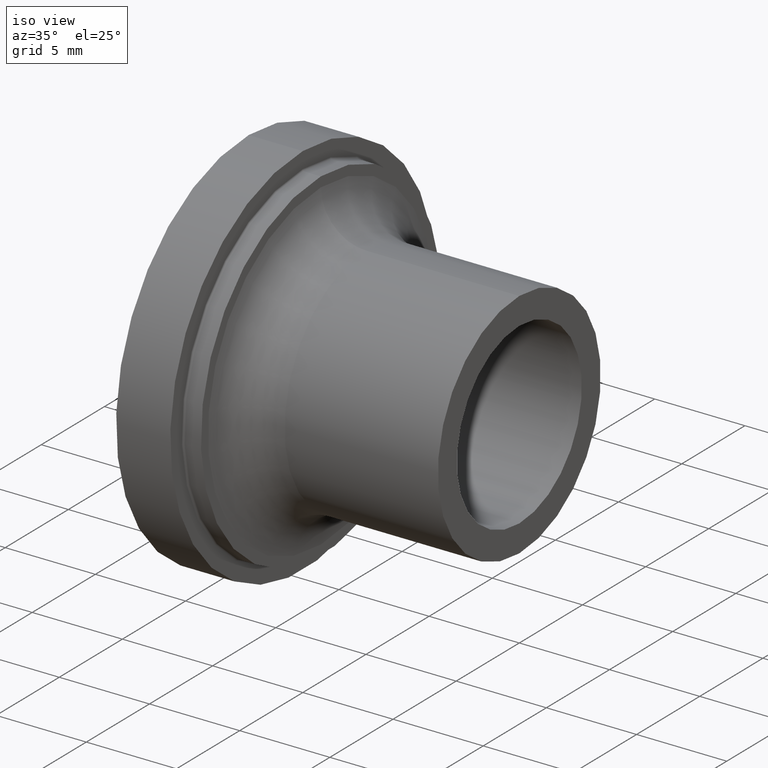
[diagram: clean part render]
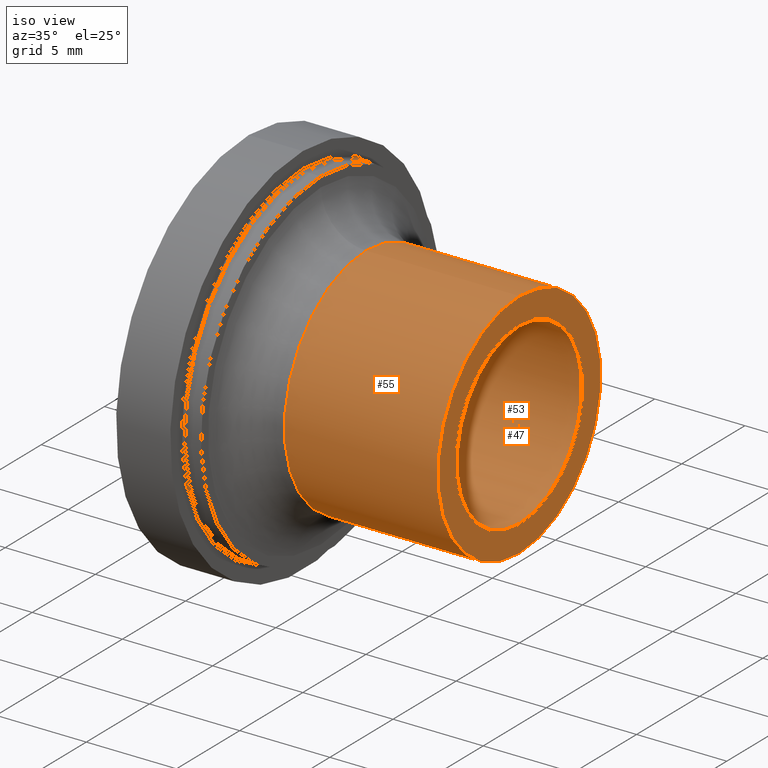
[diagram: same view with one multi-face feature highlighted, each face labeled with its STEP entity id]
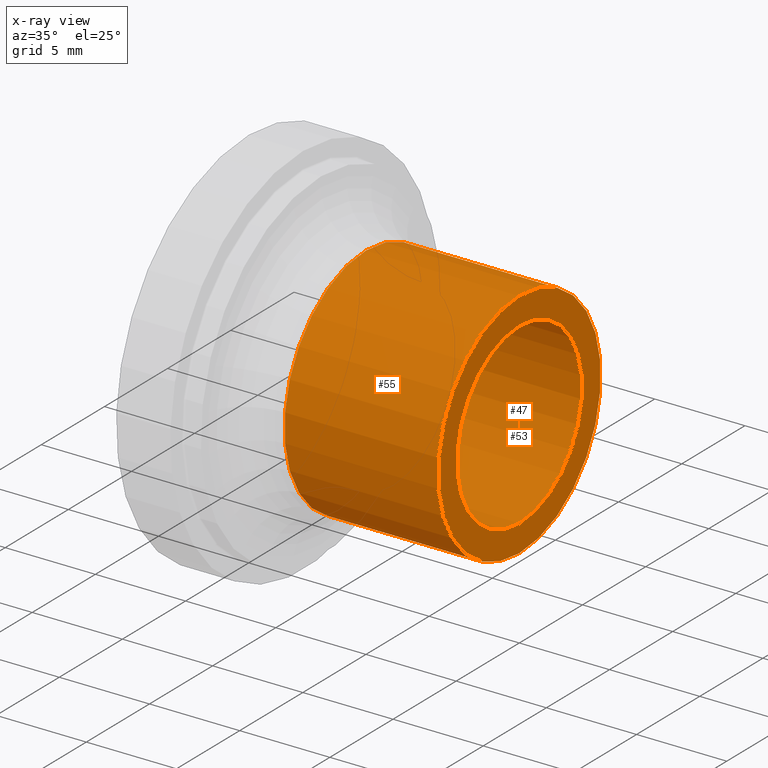
[diagram: x-ray of the same camera — body ghosted, the whole feature saturated]
A machine part, iso view. The highlighted faces form ONE feature: a stepped (counterbored) hole: 2 coaxial cylindrical walls of radii 4.95 -> 6.45 mm joined by 1 annular planar shoulder face(s). The faces share edges in the B-rep.
The next image is the same camera in x-ray: the body ghosted and the whole hole feature saturated, so the bore chain is visible through the body.
Their STEP definitions:
[1] entity #55 (Cylinder):
#55 = ADVANCED_FACE( '', ( #116, #117 ), #118, .T. );
#116 = FACE_OUTER_BOUND( '', #175, .T. );
#117 = FACE_OUTER_BOUND( '', #176, .T. );
#118 = CYLINDRICAL_SURFACE( '', #177, 6.45000000000000 );
#175 = EDGE_LOOP( '', ( #246 ) );
#176 = EDGE_LOOP( '', ( #247 ) );
#177 = AXIS2_PLACEMENT_3D( '', #248, #249, #250 );
#246 = ORIENTED_EDGE( '', *, *, #280, .F. );
#247 = ORIENTED_EDGE( '', *, *, #289, .T. );
#248 = CARTESIAN_POINT( '', ( -60.0000000000000, 0.000000000000000, 0.000000000000000 ) );
#249 = DIRECTION( '', ( 1.00000000000000, -0.000000000000000, -0.000000000000000 ) );
#250 = DIRECTION( '', ( 0.000000000000000, 0.000000000000000, 1.00000000000000 ) );
#280 = EDGE_CURVE( '', #312, #312, #313, .T. );
#289 = EDGE_CURVE( '', #326, #326, #327, .T. );
#312 = VERTEX_POINT( '', #351 );
#313 = CIRCLE( '', #352, 6.45000000000000 );
#326 = VERTEX_POINT( '', #365 );
#327 = CIRCLE( '', #366, 6.45000000000000 );
#351 = CARTESIAN_POINT( '', ( 6.50000000000000, 0.000000000000000, 6.45000000000000 ) );
#352 = AXIS2_PLACEMENT_3D( '', #391, #392, #393 );
#365 = CARTESIAN_POINT( '', ( 15.0000000000000, 0.000000000000000, 6.45000000000000 ) );
#366 = AXIS2_PLACEMENT_3D( '', #406, #407, #408 );
#391 = CARTESIAN_POINT( '', ( 6.50000000000000, 0.000000000000000, 0.000000000000000 ) );
#392 = DIRECTION( '', ( -1.00000000000000, 0.000000000000000, 0.000000000000000 ) );
#393 = DIRECTION( '', ( 0.000000000000000, 0.000000000000000, 1.00000000000000 ) );
#406 = CARTESIAN_POINT( '', ( 15.0000000000000, 0.000000000000000, 0.000000000000000 ) );
#407 = DIRECTION( '', ( -1.00000000000000, 0.000000000000000, 0.000000000000000 ) );
#408 = DIRECTION( '', ( 0.000000000000000, 0.000000000000000, 1.00000000000000 ) );
[2] entity #47 (Cylinder):
#47 = ADVANCED_FACE( '', ( #100, #101 ), #102, .F. );
#100 = FACE_OUTER_BOUND( '', #159, .T. );
#101 = FACE_OUTER_BOUND( '', #160, .T. );
#102 = CYLINDRICAL_SURFACE( '', #161, 4.95000000000000 );
#159 = EDGE_LOOP( '', ( #222 ) );
#160 = EDGE_LOOP( '', ( #223 ) );
#161 = AXIS2_PLACEMENT_3D( '', #224, #225, #226 );
#222 = ORIENTED_EDGE( '', *, *, #282, .F. );
#223 = ORIENTED_EDGE( '', *, *, #283, .T. );
#224 = CARTESIAN_POINT( '', ( 0.000000000000000, 0.000000000000000, 3.67273485929464E-015 ) );
#225 = DIRECTION( '', ( -1.00000000000000, -0.000000000000000, 0.000000000000000 ) );
#226 = DIRECTION( '', ( 0.000000000000000, 0.000000000000000, 1.00000000000000 ) );
#282 = EDGE_CURVE( '', #315, #315, #316, .T. );
#283 = EDGE_CURVE( '', #317, #317, #318, .T. );
#315 = VERTEX_POINT( '', #354 );
#316 = CIRCLE( '', #355, 4.95000000000000 );
#317 = VERTEX_POINT( '', #356 );
#318 = CIRCLE( '', #357, 4.95000000000000 );
#354 = CARTESIAN_POINT( '', ( 15.0000000000000, 0.000000000000000, 4.95000000000000 ) );
#355 = AXIS2_PLACEMENT_3D( '', #394, #395, #396 );
#356 = CARTESIAN_POINT( '', ( 8.00000000000000, 0.000000000000000, 4.95000000000000 ) );
#357 = AXIS2_PLACEMENT_3D( '', #397, #398, #399 );
#394 = CARTESIAN_POINT( '', ( 15.0000000000000, 0.000000000000000, 3.67273485929464E-015 ) );
#395 = DIRECTION( '', ( -1.00000000000000, 0.000000000000000, 0.000000000000000 ) );
#396 = DIRECTION( '', ( 0.000000000000000, 0.000000000000000, 1.00000000000000 ) );
#397 = CARTESIAN_POINT( '', ( 8.00000000000000, 0.000000000000000, 0.000000000000000 ) );
#398 = DIRECTION( '', ( -1.00000000000000, 0.000000000000000, 0.000000000000000 ) );
#399 = DIRECTION( '', ( 0.000000000000000, 0.000000000000000, 1.00000000000000 ) );
[3] entity #53 (Plane):
#53 = ADVANCED_FACE( '', ( #112, #113 ), #114, .F. );
#112 = FACE_BOUND( '', #171, .T. );
#113 = FACE_OUTER_BOUND( '', #172, .T. );
#114 = PLANE( '', #173 );
#171 = EDGE_LOOP( '', ( #240 ) );
#172 = EDGE_LOOP( '', ( #241 ) );
#173 = AXIS2_PLACEMENT_3D( '', #242, #243, #244 );
#240 = ORIENTED_EDGE( '', *, *, #282, .T. );
#241 = ORIENTED_EDGE( '', *, *, #289, .F. );
#242 = CARTESIAN_POINT( '', ( 15.0000000000000, 0.000000000000000, 0.000000000000000 ) );
#243 = DIRECTION( '', ( -1.00000000000000, 0.000000000000000, 0.000000000000000 ) );
#244 = DIRECTION( '', ( 0.000000000000000, 0.000000000000000, 1.00000000000000 ) );
#282 = EDGE_CURVE( '', #315, #315, #316, .T. );
#289 = EDGE_CURVE( '', #326, #326, #327, .T. );
#315 = VERTEX_POINT( '', #354 );
#316 = CIRCLE( '', #355, 4.95000000000000 );
#326 = VERTEX_POINT( '', #365 );
#327 = CIRCLE( '', #366, 6.45000000000000 );
#354 = CARTESIAN_POINT( '', ( 15.0000000000000, 0.000000000000000, 4.95000000000000 ) );
#355 = AXIS2_PLACEMENT_3D( '', #394, #395, #396 );
#365 = CARTESIAN_POINT( '', ( 15.0000000000000, 0.000000000000000, 6.45000000000000 ) );
#366 = AXIS2_PLACEMENT_3D( '', #406, #407, #408 );
#394 = CARTESIAN_POINT( '', ( 15.0000000000000, 0.000000000000000, 3.67273485929464E-015 ) );
#395 = DIRECTION( '', ( -1.00000000000000, 0.000000000000000, 0.000000000000000 ) );
#396 = DIRECTION( '', ( 0.000000000000000, 0.000000000000000, 1.00000000000000 ) );
#406 = CARTESIAN_POINT( '', ( 15.0000000000000, 0.000000000000000, 0.000000000000000 ) );
#407 = DIRECTION( '', ( -1.00000000000000, 0.000000000000000, 0.000000000000000 ) );
#408 = DIRECTION( '', ( 0.000000000000000, 0.000000000000000, 1.00000000000000 ) );